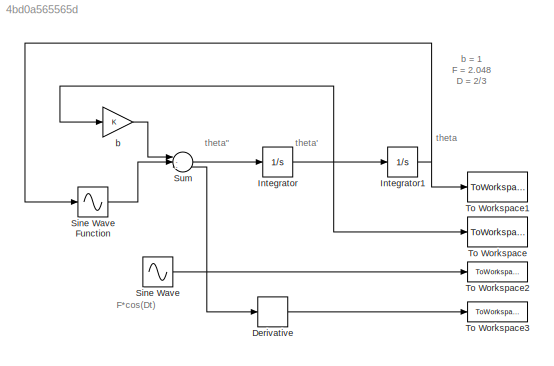
MODEL slx_4bd0a565565d
KIND model
CONFIG AbsTol = auto
CONFIG EnableMultiTasking = on
CONFIG FixedStep = 1e-03
CONFIG MaxStep = auto
CONFIG MinStep = auto
CONFIG RelTol = 1e-3
CONFIG SampleTimeConstraint = Unconstrained
CONFIG SolverName = ode3
CONFIG StartTime = 0.0
CONFIG StopTime = 1000
BLOCK [Derivative] Derivative
BLOCK [Integrator] Integrator
  InitialCondition = 0.01
  Ports = [1, 1]
BLOCK [Integrator] Integrator1
  InitialCondition = 0.01
  Ports = [1, 1]
BLOCK [Sin] Sine Wave
  Amplitude = 2.048
  Frequency = 2/3
  Ports = [0, 1]
  SampleTime = 0
BLOCK [Sin] Sine Wave Function
  Ports = [1, 1]
  SampleTime = 0
  TimeSource = Use external signal
BLOCK [Sum] Sum
  Inputs = |--+
  Ports = [3, 1]
BLOCK [ToWorkspace] To Workspace
  FixptAsFi = on
  MaxDataPoints = inf
  Ports = [1]
  SampleTime = -1
  SaveFormat = Timeseries
  VariableName = v
BLOCK [ToWorkspace] To Workspace1
  FixptAsFi = on
  MaxDataPoints = inf
  Ports = [1]
  SampleTime = -1
  SaveFormat = Timeseries
  VariableName = theta
BLOCK [ToWorkspace] To Workspace2
  FixptAsFi = on
  MaxDataPoints = inf
  Ports = [1]
  SampleTime = -1
  SaveFormat = Timeseries
  VariableName = F
BLOCK [ToWorkspace] To Workspace3
  FixptAsFi = on
  MaxDataPoints = inf
  Ports = [1]
  SampleTime = -1
  SaveFormat = Timeseries
  VariableName = dF
BLOCK [Gain] b
ANNOTATION (root): b = 1 F = 2.048 D = 2/3
ANNOTATION (root): F*cos(Dt)
ANNOTATION (root): theta
ANNOTATION (root): theta"
ANNOTATION (root): theta'
LINE Derivative:1 -> To Workspace3:1
NET Integrator1:1 -> Sine Wave Function:1, To Workspace1:1
NET Integrator:1 -> Integrator1:1, To Workspace:1, b:1
LINE Sine Wave Function:1 -> Sum:2
NET Sine Wave:1 -> Derivative:1, Sum:3, To Workspace2:1
LINE Sum:1 -> Integrator:1
LINE b:1 -> Sum:1
note: NET lines group one-source signal fan-out (src -> all destinations, sorted); 1:1 wires keep LINE
